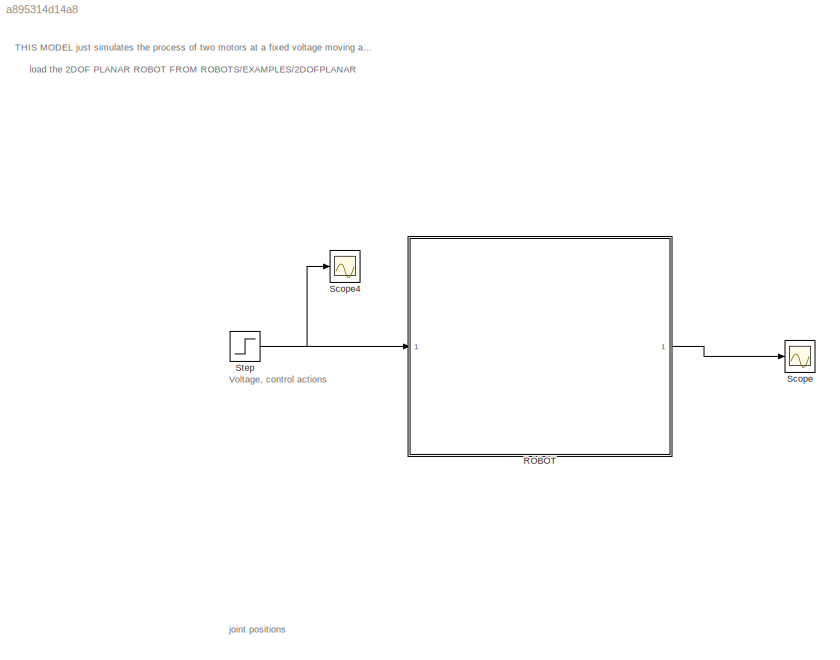
MODEL slx_a895314d14a8
KIND model
CONFIG AbsTol = auto
CONFIG EnableMultiTasking = on
CONFIG FixedStep = 0.005
CONFIG MaxStep = auto
CONFIG MinStep = auto
CONFIG RelTol = 1e-3
CONFIG SampleTimeConstraint = Unconstrained
CONFIG Solver = ode45
CONFIG SolverName = ode45
CONFIG StartTime = 0.0
CONFIG StopTime = 4
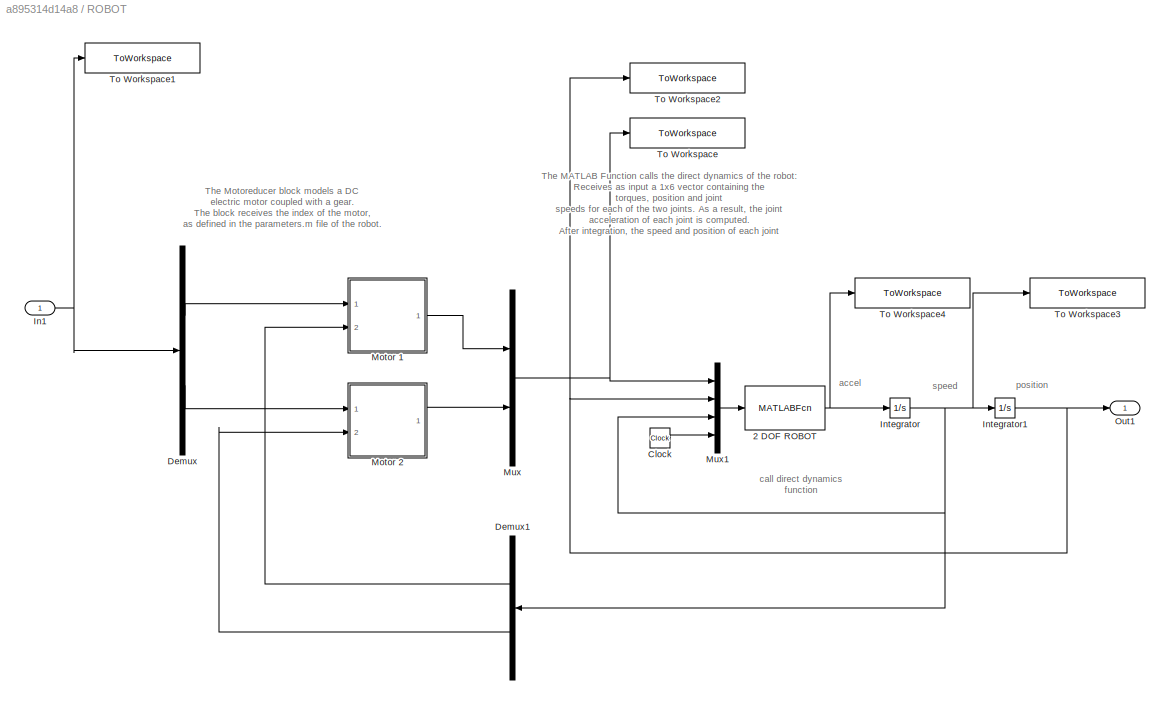
BLOCK [SubSystem] ROBOT
  Ports = [1, 1]
  RequestExecContextInheritance = off
BLOCK [MATLABFcn] ROBOT/2 DOF ROBOT
  MATLABFcn = call_direct_dynamics_2dofplanar_s3b(u)
  OutputDimensions = 2
  Ports = [1, 1]
BLOCK [Clock] ROBOT/Clock
BLOCK [Demux] ROBOT/Demux
  DisplayOption = bar
  Outputs = 2
  Ports = [1, 2]
BLOCK [Demux] ROBOT/Demux1
  DisplayOption = bar
  Outputs = 2
  Ports = [1, 2]
BLOCK [Inport] ROBOT/In1
  IconDisplay = Port number
BLOCK [Integrator] ROBOT/Integrator
  InitialCondition = [0 0 ]
  Ports = [1, 1]
BLOCK [Integrator] ROBOT/Integrator1
  InitialCondition = [0 0]
  Ports = [1, 1]
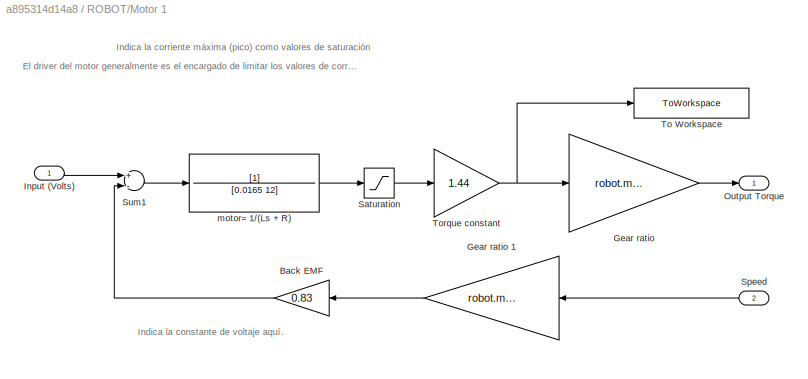
BLOCK [SubSystem] ROBOT/Motor 1
  Ports = [2, 1]
  RequestExecContextInheritance = off
BLOCK [Gain] ROBOT/Motor 1/Back EMF
  Gain = 0.83
BLOCK [Gain] ROBOT/Motor 1/Gear ratio
  Gain = robot.motors.G(1)
BLOCK [Gain] ROBOT/Motor 1/Gear ratio 1
  Gain = robot.motors.G(1)
BLOCK [Inport] ROBOT/Motor 1/Input (Volts)
  IconDisplay = Port number
BLOCK [Outport] ROBOT/Motor 1/Output Torque
  IconDisplay = Port number
  InitialOutput = 0
BLOCK [Saturate] ROBOT/Motor 1/Saturation
  InputPortMap = u0
  LowerLimit = -11
  Ports = [1, 1]
  UpperLimit = 11
  ZeroCross = off
BLOCK [Inport] ROBOT/Motor 1/Speed
  IconDisplay = Port number
  Port = 2
BLOCK [Sum] ROBOT/Motor 1/Sum1
  Inputs = +-
  Ports = [2, 1]
BLOCK [ToWorkspace] ROBOT/Motor 1/To Workspace
  MaxDataPoints = inf
  Ports = [1]
  SampleTime = -1
  VariableName = motor1_torque
BLOCK [Gain] ROBOT/Motor 1/Torque constant
  Gain = 1.44
BLOCK [TransferFcn] ROBOT/Motor 1/motor= 1//(Ls + R)
  Denominator = [0.0165 12]
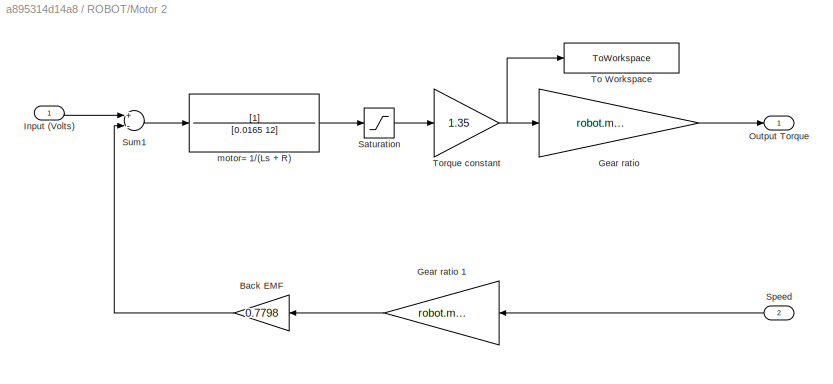
BLOCK [SubSystem] ROBOT/Motor 2
  Ports = [2, 1]
  RequestExecContextInheritance = off
BLOCK [Gain] ROBOT/Motor 2/Back EMF
  Gain = 0.7798
BLOCK [Gain] ROBOT/Motor 2/Gear ratio
  Gain = robot.motors.G(2)
BLOCK [Gain] ROBOT/Motor 2/Gear ratio 1
  Gain = robot.motors.G(2)
BLOCK [Inport] ROBOT/Motor 2/Input (Volts)
  IconDisplay = Port number
BLOCK [Outport] ROBOT/Motor 2/Output Torque
  IconDisplay = Port number
  InitialOutput = 0
BLOCK [Saturate] ROBOT/Motor 2/Saturation
  InputPortMap = u0
  LowerLimit = -9
  Ports = [1, 1]
  UpperLimit = 9
  ZeroCross = off
BLOCK [Inport] ROBOT/Motor 2/Speed
  IconDisplay = Port number
  Port = 2
BLOCK [Sum] ROBOT/Motor 2/Sum1
  Inputs = +-
  Ports = [2, 1]
BLOCK [ToWorkspace] ROBOT/Motor 2/To Workspace
  MaxDataPoints = inf
  Ports = [1]
  SampleTime = -1
  VariableName = motor2_torque
BLOCK [Gain] ROBOT/Motor 2/Torque constant
  Gain = 1.35
BLOCK [TransferFcn] ROBOT/Motor 2/motor= 1//(Ls + R)
  Denominator = [0.0165 12]
BLOCK [Mux] ROBOT/Mux
  DisplayOption = bar
  Inputs = 2
  Ports = [2, 1]
BLOCK [Mux] ROBOT/Mux1
  DisplayOption = bar
  Ports = [4, 1]
BLOCK [Outport] ROBOT/Out1
  IconDisplay = Port number
BLOCK [ToWorkspace] ROBOT/To Workspace
  MaxDataPoints = inf
  Ports = [1]
  SampleTime = -1
  VariableName = joint_torques
BLOCK [ToWorkspace] ROBOT/To Workspace1
  MaxDataPoints = inf
  Ports = [1]
  SampleTime = -1
  VariableName = control_actions
BLOCK [ToWorkspace] ROBOT/To Workspace2
  MaxDataPoints = inf
  Ports = [1]
  SampleTime = -1
  VariableName = joint_positions
BLOCK [ToWorkspace] ROBOT/To Workspace3
  MaxDataPoints = inf
  Ports = [1]
  SampleTime = -1
  VariableName = joint_speeds
BLOCK [ToWorkspace] ROBOT/To Workspace4
  MaxDataPoints = inf
  Ports = [1]
  SampleTime = -1
  VariableName = joint_accelerations
BLOCK [Scope] Scope
  Floating = off
  NumInputPorts = 1
  Ports = [1]
  ScopeSpecificationString = Simulink.scopes.TimeScopeBlockCfg('CurrentConfiguration', extmgr.ConfigurationSet(extmgr.Configuration('Core','General UI',true),extmgr.Configuration('Core','Source UI',true),extmgr.Configuration('Sources','WiredSimulink',true,'DataLogging',true,'DataLoggingSaveFormat','Array','DataLoggingDecimation','1','DataLoggingDecimateData',true),extmgr.Configuration('Visuals','Time Domain',true,'SerializedD...<+1693ch>
BLOCK [Scope] Scope4
  Floating = off
  NumInputPorts = 1
  Ports = [1]
  ScopeSpecificationString = C++SS(StrPVP('Location','[62, 145, 1275, 638]'),StrPVP('Open','off'),StrPVP('ZoomMode','yonly'),MxPVP('AxesTitles',53,'struct(''axes1'',''%<SignalLabel>'')'),MxPVP('ScopeGraphics',56,'struct(''FigureColor'',''[0.5 0.5 0.5]'',''AxesColor'',''[0 0 0]'',''AxesTickColor'',''[1 1 1]'',''LineColors'',''[1 1 0;1 0 1;0 1 1;1 0 0;0 1 0;0 0 1]'',''LineStyles'',''-|-|-|-|-|-'',''LineWidths'',''[0.5 0.5 0.5 0...<+313ch>
BLOCK [Step] Step
  After = 5
  SampleTime = 0
  Time = 0
ANNOTATION (root): THIS MODEL just simulates the process of two motors at a fixed voltage moving a 2 DOF robot. load the 2DOF PLANAR ROBOT FROM ROBOTS/EXAMPLES/2DOFPLANAR
ANNOTATION (root): Voltage, control actions
ANNOTATION (root): joint positions
ANNOTATION ROBOT: The MATLAB Function calls the direct dynamics of the robot: Receives as input a 1x6 vector containing the torques, position and joint speeds for each of the two joints. As a result, the joint acceleration of each joint is computed. After integration, the speed and position of each joint is computed and sent back to the controller
ANNOTATION ROBOT: The Motoreducer block models a DC electric motor coupled with a gear. The block receives the index of the motor, as defined in the parameters.m file of the robot.
ANNOTATION ROBOT: accel
ANNOTATION ROBOT: call direct dynamics function
ANNOTATION ROBOT: position
ANNOTATION ROBOT: speed
ANNOTATION ROBOT/Motor 1: El driver del motor generalmente es el encargado de limitar los valores de corriente.
ANNOTATION ROBOT/Motor 1: Indica la constante de voltaje aquí.
ANNOTATION ROBOT/Motor 1: Indica la corriente máxima (pico) como valores de saturación
NET ROBOT/2 DOF ROBOT:1 -> ROBOT/Integrator:1, ROBOT/To Workspace4:1
LINE ROBOT/Clock:1 -> ROBOT/Mux1:4
LINE ROBOT/Demux1:1 -> ROBOT/Motor 1:2
LINE ROBOT/Demux1:2 -> ROBOT/Motor 2:2
LINE ROBOT/Demux:1 -> ROBOT/Motor 1:1
LINE ROBOT/Demux:2 -> ROBOT/Motor 2:1
NET ROBOT/In1:1 -> ROBOT/Demux:1, ROBOT/To Workspace1:1
NET ROBOT/Integrator1:1 -> ROBOT/Mux1:2, ROBOT/Out1:1, ROBOT/To Workspace2:1
NET ROBOT/Integrator:1 -> ROBOT/Demux1:1, ROBOT/Integrator1:1, ROBOT/Mux1:3, ROBOT/To Workspace3:1
LINE ROBOT/Motor 1/Back EMF:1 -> ROBOT/Motor 1/Sum1:2
LINE ROBOT/Motor 1/Gear ratio 1:1 -> ROBOT/Motor 1/Back EMF:1
LINE ROBOT/Motor 1/Gear ratio:1 -> ROBOT/Motor 1/Output Torque:1
LINE ROBOT/Motor 1/Input (Volts):1 -> ROBOT/Motor 1/Sum1:1
LINE ROBOT/Motor 1/Saturation:1 -> ROBOT/Motor 1/Torque constant:1
LINE ROBOT/Motor 1/Speed:1 -> ROBOT/Motor 1/Gear ratio 1:1
LINE ROBOT/Motor 1/Sum1:1 -> ROBOT/Motor 1/motor= 1//(Ls + R):1
NET ROBOT/Motor 1/Torque constant:1 -> ROBOT/Motor 1/Gear ratio:1, ROBOT/Motor 1/To Workspace:1
LINE ROBOT/Motor 1/motor= 1//(Ls + R):1 -> ROBOT/Motor 1/Saturation:1
LINE ROBOT/Motor 1:1 -> ROBOT/Mux:1
LINE ROBOT/Motor 2/Back EMF:1 -> ROBOT/Motor 2/Sum1:2
LINE ROBOT/Motor 2/Gear ratio 1:1 -> ROBOT/Motor 2/Back EMF:1
LINE ROBOT/Motor 2/Gear ratio:1 -> ROBOT/Motor 2/Output Torque:1
LINE ROBOT/Motor 2/Input (Volts):1 -> ROBOT/Motor 2/Sum1:1
LINE ROBOT/Motor 2/Saturation:1 -> ROBOT/Motor 2/Torque constant:1
LINE ROBOT/Motor 2/Speed:1 -> ROBOT/Motor 2/Gear ratio 1:1
LINE ROBOT/Motor 2/Sum1:1 -> ROBOT/Motor 2/motor= 1//(Ls + R):1
NET ROBOT/Motor 2/Torque constant:1 -> ROBOT/Motor 2/Gear ratio:1, ROBOT/Motor 2/To Workspace:1
LINE ROBOT/Motor 2/motor= 1//(Ls + R):1 -> ROBOT/Motor 2/Saturation:1
LINE ROBOT/Motor 2:1 -> ROBOT/Mux:2
LINE ROBOT/Mux1:1 -> ROBOT/2 DOF ROBOT:1
NET ROBOT/Mux:1 -> ROBOT/Mux1:1, ROBOT/To Workspace:1
LINE ROBOT:1 -> Scope:1
NET Step:1 -> ROBOT:1, Scope4:1
note: NET lines group one-source signal fan-out (src -> all destinations, sorted); 1:1 wires keep LINE
